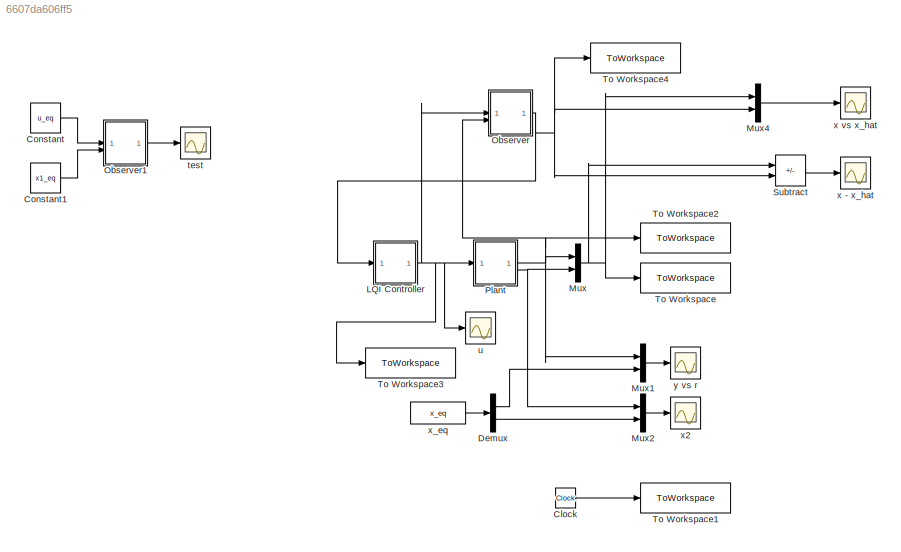
MODEL slx_6607da606ff5
KIND model
CONFIG AbsTol = auto
CONFIG EnableMultiTasking = off
CONFIG FixedStep = auto
CONFIG MaxStep = auto
CONFIG MinStep = auto
CONFIG RelTol = 1e-10
CONFIG SampleTimeConstraint = Unconstrained
CONFIG SolverName = VariableStepAuto
CONFIG StartTime = 0.0
CONFIG StopTime = 20
BLOCK [Clock] Clock
BLOCK [Constant] Constant
  Value = u_eq
BLOCK [Constant] Constant1
  Value = x1_eq
BLOCK [Demux] Demux
  Outputs = 2
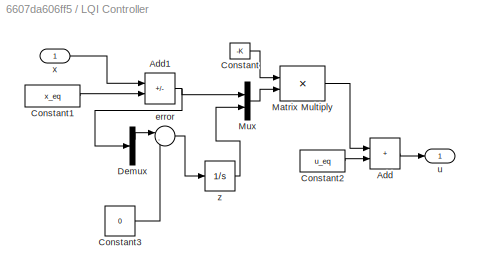
BLOCK [SubSystem] LQI Controller
BLOCK [Sum] LQI Controller/Add
  IconShape = rectangular
BLOCK [Sum] LQI Controller/Add1
  AccumDataTypeStr = Inherit: Same as first input
  IconShape = rectangular
  InputSameDT = on
  Inputs = +-
  LockScale = on
BLOCK [Constant] LQI Controller/Constant
  Value = -K
  VectorParams1D = off
BLOCK [Constant] LQI Controller/Constant1
  Value = x_eq
BLOCK [Constant] LQI Controller/Constant2
  Value = u_eq
BLOCK [Constant] LQI Controller/Constant3
  Value = 0
BLOCK [Demux] LQI Controller/Demux
  Outputs = 2
BLOCK [Product] LQI Controller/Matrix Multiply
  Multiplication = Matrix(*)
BLOCK [Mux] LQI Controller/Mux
  DisplayOption = bar
  Inputs = 2
BLOCK [Sum] LQI Controller/error
  Inputs = |-+
  NameLocation = top
BLOCK [Outport] LQI Controller/u
BLOCK [Inport] LQI Controller/x
BLOCK [Integrator] LQI Controller/z
  InitialCondition = 0.1
BLOCK [Mux] Mux
  DisplayOption = bar
  Inputs = 2
BLOCK [Mux] Mux1
  DisplayOption = bar
  Inputs = 2
BLOCK [Mux] Mux2
  DisplayOption = bar
  Inputs = 2
BLOCK [Mux] Mux4
  DisplayOption = bar
  Inputs = 2
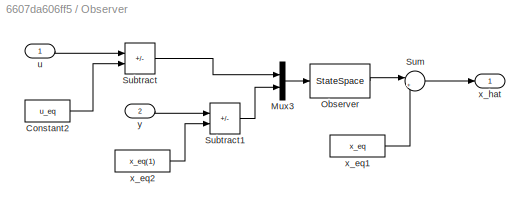
BLOCK [SubSystem] Observer
BLOCK [Constant] Observer/Constant2
  Value = u_eq
BLOCK [Mux] Observer/Mux3
  DisplayOption = bar
  Inputs = 2
BLOCK [StateSpace] Observer/Observer
  A = A-L*C
  B = [B L]
  C = eye(2)
  D = [0 0; 0 0]
  InitialCondition = [0 0]
  ParameterTunability = Unconstrained
BLOCK [Sum] Observer/Subtract
  IconShape = rectangular
  Inputs = +-
BLOCK [Sum] Observer/Subtract1
  IconShape = rectangular
  Inputs = +-
BLOCK [Sum] Observer/Sum
  Inputs = |++
BLOCK [Inport] Observer/u
BLOCK [Constant] Observer/x_eq1
  Value = x_eq
BLOCK [Constant] Observer/x_eq2
  Value = x_eq(1)
BLOCK [Outport] Observer/x_hat
BLOCK [Inport] Observer/y
  Port = 2
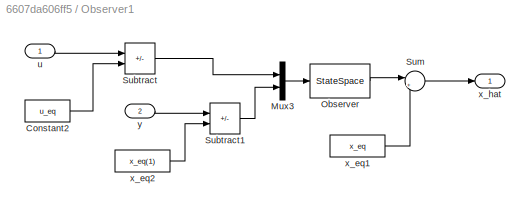
BLOCK [SubSystem] Observer1
BLOCK [Constant] Observer1/Constant2
  Value = u_eq
BLOCK [Mux] Observer1/Mux3
  DisplayOption = bar
  Inputs = 2
BLOCK [StateSpace] Observer1/Observer
  A = A-L*C
  B = [B L]
  C = eye(2)
  D = [0 0; 0 0]
  InitialCondition = [0.001 0.01]
  ParameterTunability = Unconstrained
BLOCK [Sum] Observer1/Subtract
  IconShape = rectangular
  Inputs = +-
BLOCK [Sum] Observer1/Subtract1
  IconShape = rectangular
  Inputs = +-
BLOCK [Sum] Observer1/Sum
  Inputs = |++
BLOCK [Inport] Observer1/u
BLOCK [Constant] Observer1/x_eq1
  Value = x_eq
BLOCK [Constant] Observer1/x_eq2
  Value = x_eq(1)
BLOCK [Outport] Observer1/x_hat
BLOCK [Inport] Observer1/y
  Port = 2
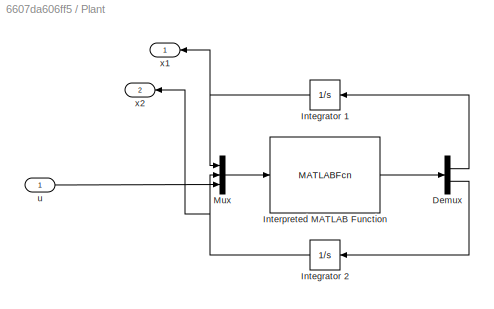
BLOCK [SubSystem] Plant
BLOCK [Demux] Plant/Demux
  Outputs = 2
BLOCK [Integrator] Plant/Integrator 1
  InitialCondition = x1_0
  NameLocation = top
BLOCK [Integrator] Plant/Integrator 2
  InitialCondition = x2_0
  NameLocation = top
BLOCK [MATLABFcn] Plant/Interpreted MATLAB Function
  MATLABFcn = SYS
  OutputDimensions = 2
BLOCK [Mux] Plant/Mux
  DisplayOption = bar
  Inputs = 3
BLOCK [Inport] Plant/u
BLOCK [Outport] Plant/x1
BLOCK [Outport] Plant/x2
  Port = 2
BLOCK [Sum] Subtract
  IconShape = rectangular
  Inputs = +-
BLOCK [ToWorkspace] To Workspace
  FixptAsFi = on
  MaxDataPoints = inf
  SampleTime = -1
  VariableName = x
BLOCK [ToWorkspace] To Workspace1
  FixptAsFi = on
  MaxDataPoints = inf
  SampleTime = -1
  SaveFormat = Timeseries
  VariableName = t
BLOCK [ToWorkspace] To Workspace2
  FixptAsFi = on
  MaxDataPoints = inf
  SampleTime = -1
  VariableName = y
BLOCK [ToWorkspace] To Workspace3
  FixptAsFi = on
  MaxDataPoints = inf
  SampleTime = -1
  VariableName = u
BLOCK [ToWorkspace] To Workspace4
  FixptAsFi = on
  MaxDataPoints = inf
  SampleTime = -1
  SaveFormat = Timeseries
  VariableName = x_hat
BLOCK [Scope] test
  Floating = off
  NumInputPorts = 1
  ScopeSpecificationString = Simulink.scopes.TimeScopeBlockCfg('CurrentConfiguration', extmgr.ConfigurationSet(extmgr.Configuration('Core','General UI',true),extmgr.Configuration('Core','Source UI',true),extmgr.Configuration('Sources','WiredSimulink',true,'DataLoggingVariableName','ScopeData2'),extmgr.Configuration('Visuals','Time Domain',true,'SerializedDisplays',{struct('MinYLimReal','0.04233','MaxYLimReal','0.04827','YLabe...<+1818ch>
BLOCK [Scope] u
  Floating = off
  NumInputPorts = 1
  ScopeSpecificationString = Simulink.scopes.TimeScopeBlockCfg('CurrentConfiguration', extmgr.ConfigurationSet(extmgr.Configuration('Core','General UI',true),extmgr.Configuration('Core','Source UI',true),extmgr.Configuration('Sources','WiredSimulink',true,'DataLoggingVariableName','ScopeData1'),extmgr.Configuration('Visuals','Time Domain',true,'SerializedDisplays',{struct('MinYLimReal','-61.24774','MaxYLimReal','153.2084','YL...<+1853ch>
BLOCK [Scope] x - x_hat
  Floating = off
  NumInputPorts = 1
  ScopeSpecificationString = Simulink.scopes.TimeScopeBlockCfg('CurrentConfiguration', extmgr.ConfigurationSet(extmgr.Configuration('Core','General UI',true),extmgr.Configuration('Core','Source UI',true),extmgr.Configuration('Sources','WiredSimulink',true,'DataLoggingVariableName','ScopeData1'),extmgr.Configuration('Visuals','Time Domain',true,'SerializedDisplays',{struct('MinYLimReal','-0.48684','MaxYLimReal','1.28252','YLab...<+1546ch>
BLOCK [Scope] x vs x_hat
  Floating = off
  NumInputPorts = 1
  ScopeSpecificationString = Simulink.scopes.TimeScopeBlockCfg('CurrentConfiguration', extmgr.ConfigurationSet(extmgr.Configuration('Core','General UI',true),extmgr.Configuration('Core','Source UI',true),extmgr.Configuration('Sources','WiredSimulink',true,'DataLoggingVariableName','ScopeData1'),extmgr.Configuration('Visuals','Time Domain',true,'SerializedDisplays',{struct('MinYLimReal','-0.12664','MaxYLimReal','0.58353','YLab...<+1893ch>
BLOCK [Scope] x2
  Floating = off
  NumInputPorts = 1
  ScopeSpecificationString = Simulink.scopes.TimeScopeBlockCfg('CurrentConfiguration', extmgr.ConfigurationSet(extmgr.Configuration('Core','General UI',true),extmgr.Configuration('Core','Source UI',true),extmgr.Configuration('Sources','WiredSimulink',true,'DataLoggingVariableName','ScopeData1'),extmgr.Configuration('Visuals','Time Domain',true,'SerializedDisplays',{struct('MinYLimReal','-0.36225','MaxYLimReal','0.41894','YLab...<+1781ch>
BLOCK [Constant] x_eq
  Value = x_eq
BLOCK [Scope] y vs r
  Floating = off
  NumInputPorts = 1
  ScopeSpecificationString = Simulink.scopes.TimeScopeBlockCfg('CurrentConfiguration', extmgr.ConfigurationSet(extmgr.Configuration('Core','General UI',true),extmgr.Configuration('Core','Source UI',true),extmgr.Configuration('Sources','WiredSimulink',true),extmgr.Configuration('Visuals','Time Domain',true,'SerializedDisplays',{struct('MinYLimReal','0.03685','MaxYLimReal','0.10805','YLabelReal','','MinYLimMag','0.03685','MaxYL...<+1953ch>
LINE Clock:1 -> To Workspace1:1
LINE Constant1:1 -> Observer1:2
LINE Constant:1 -> Observer1:1
LINE Demux:1 -> Mux1:2
LINE Demux:2 -> Mux2:2
NET LQI Controller/Add1:1 -> LQI Controller/Demux:1, LQI Controller/Mux:1
LINE LQI Controller/Add:1 -> LQI Controller/u:1
LINE LQI Controller/Constant1:1 -> LQI Controller/Add1:2
LINE LQI Controller/Constant2:1 -> LQI Controller/Add:2
LINE LQI Controller/Constant3:1 -> LQI Controller/error:2
LINE LQI Controller/Constant:1 -> LQI Controller/Matrix Multiply:1
LINE LQI Controller/Demux:1 -> LQI Controller/error:1
LINE LQI Controller/Matrix Multiply:1 -> LQI Controller/Add:1
LINE LQI Controller/Mux:1 -> LQI Controller/Matrix Multiply:2
LINE LQI Controller/error:1 -> LQI Controller/z:1
LINE LQI Controller/x:1 -> LQI Controller/Add1:1
LINE LQI Controller/z:1 -> LQI Controller/Mux:2
NET LQI Controller:1 -> Observer:1, Plant:1, To Workspace3:1, u:1
LINE Mux1:1 -> y vs r:1
LINE Mux2:1 -> x2:1
LINE Mux4:1 -> x vs x_hat:1
NET Mux:1 -> Mux4:1, Subtract:1, To Workspace:1
LINE Observer/Constant2:1 -> Observer/Subtract:2
LINE Observer/Mux3:1 -> Observer/Observer:1
LINE Observer/Observer:1 -> Observer/Sum:1
LINE Observer/Subtract1:1 -> Observer/Mux3:2
LINE Observer/Subtract:1 -> Observer/Mux3:1
LINE Observer/Sum:1 -> Observer/x_hat:1
LINE Observer/u:1 -> Observer/Subtract:1
LINE Observer/x_eq1:1 -> Observer/Sum:2
LINE Observer/x_eq2:1 -> Observer/Subtract1:2
LINE Observer/y:1 -> Observer/Subtract1:1
LINE Observer1/Constant2:1 -> Observer1/Subtract:2
LINE Observer1/Mux3:1 -> Observer1/Observer:1
LINE Observer1/Observer:1 -> Observer1/Sum:1
LINE Observer1/Subtract1:1 -> Observer1/Mux3:2
LINE Observer1/Subtract:1 -> Observer1/Mux3:1
LINE Observer1/Sum:1 -> Observer1/x_hat:1
LINE Observer1/u:1 -> Observer1/Subtract:1
LINE Observer1/x_eq1:1 -> Observer1/Sum:2
LINE Observer1/x_eq2:1 -> Observer1/Subtract1:2
LINE Observer1/y:1 -> Observer1/Subtract1:1
LINE Observer1:1 -> test:1
NET Observer:1 -> LQI Controller:1, Mux4:2, Subtract:2, To Workspace4:1
LINE Plant/Demux:1 -> Plant/Integrator 1:1
LINE Plant/Demux:2 -> Plant/Integrator 2:1
NET Plant/Integrator 1:1 -> Plant/Mux:1, Plant/x1:1
NET Plant/Integrator 2:1 -> Plant/Mux:2, Plant/x2:1
LINE Plant/Interpreted MATLAB Function:1 -> Plant/Demux:1
LINE Plant/Mux:1 -> Plant/Interpreted MATLAB Function:1
LINE Plant/u:1 -> Plant/Mux:3
NET Plant:1 -> Mux1:1, Mux:1, Observer:2, To Workspace2:1
NET Plant:2 -> Mux2:1, Mux:2
LINE Subtract:1 -> x - x_hat:1
LINE x_eq:1 -> Demux:1
note: NET lines group one-source signal fan-out (src -> all destinations, sorted); 1:1 wires keep LINE
